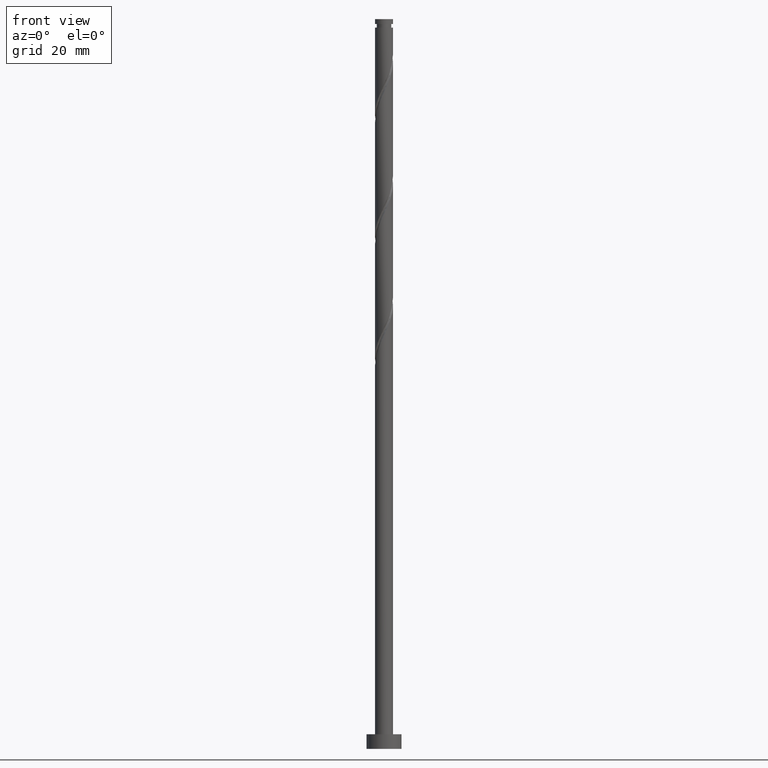
[diagram: clean part render]
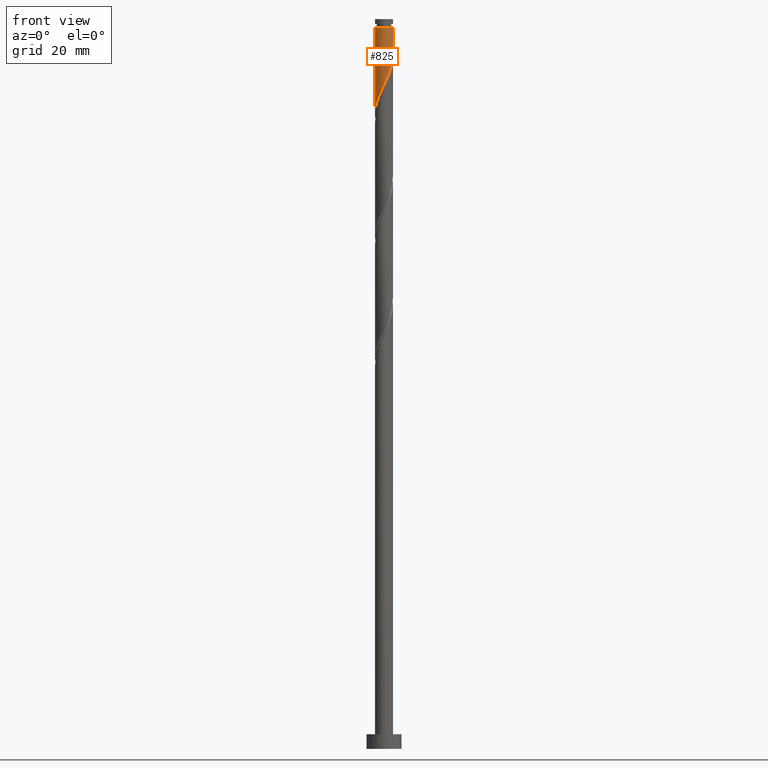
[diagram: same view with one face highlighted and labeled with its STEP entity id]
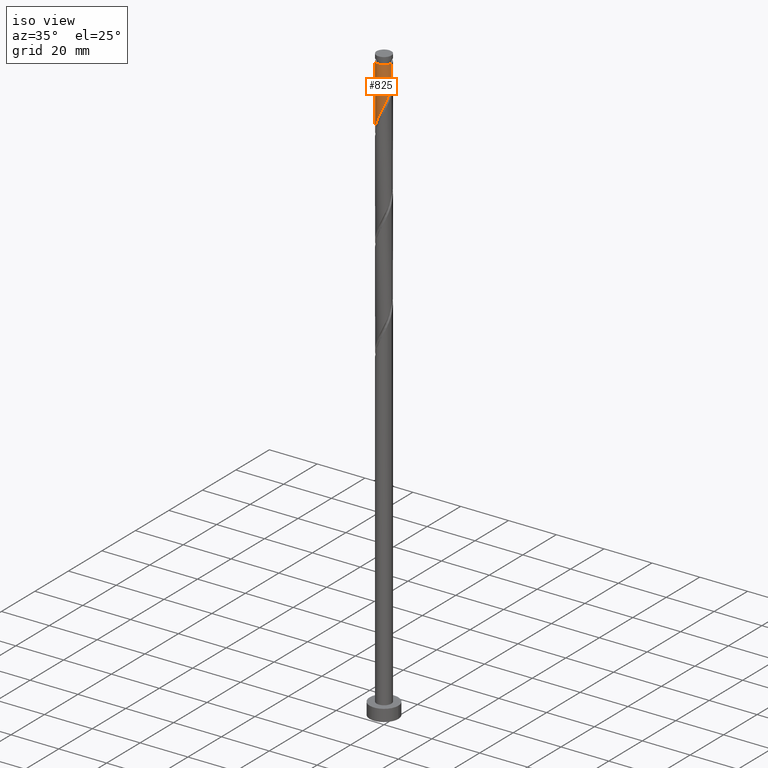
[diagram: same view with one face highlighted and labeled with its STEP entity id]
A machine part, front view. The second image highlights one B-rep face of the part: STEP entity #825.
A second angle (iso view) of the same face is appended — the face is thin or edge-on in the first view.
In plain terms, the highlighted cylindrical surface (edge-blend (fillet) strip) has radius 3.1 mm, axis along (-0, -0, -1).
Its self-contained STEP definition (entity closure, byte-faithful):
#9 = ORIENTED_EDGE ( 'NONE', *, *, #605, .T. ) ;
#54 = CARTESIAN_POINT ( 'NONE',  ( -1.326007432615845527, -2.802089272069598014, 224.6599036422655615 ) ) ;
#70 = CARTESIAN_POINT ( 'NONE',  ( 1.227034829342569244, -2.871596876557147571, 230.2688780012399832 ) ) ;
#173 = CARTESIAN_POINT ( 'NONE',  ( 2.941491420319844341, -0.9785848068434037650, 235.8778523602143480 ) ) ;
#188 = CARTESIAN_POINT ( 'NONE',  ( 3.060313128317944109, -0.6214230849569032378, 236.6791344114963920 ) ) ;
#228 = CARTESIAN_POINT ( 'NONE',  ( -0.6168922110061065833, -3.037999999999998924, 226.2624677448297064 ) ) ;
#283 =( BOUNDED_CURVE ( )  B_SPLINE_CURVE ( 2, ( #1429, #1411, #873, #188, #173, #735, #1254, #603, #1158, #1831, #347, #70, #1060, #1165, #1740, #1615, #228, #1056, #54, #1197, #364, #637, #1025, #1605, #1303, #626, #356, #1772, #1469 ),
 .UNSPECIFIED., .F., .T. ) 
 B_SPLINE_CURVE_WITH_KNOTS ( ( 3, 2, 2, 2, 2, 2, 2, 2, 2, 2, 2, 2, 2, 2, 3 ),
 ( 0.3045271625973832719, 0.3076923076923077094, 0.3173076923076922906, 0.3269230769230769273, 0.3365384615384615641, 0.3461538461538461453, 0.3557692307692307820, 0.3653846153846153633, 0.3750000000000000000, 0.3846153846153846367, 0.3942307692307692180, 0.4038461538461538547, 0.4134615384615384359, 0.4230769230769230727, 0.4295271625973834939 ),
 .UNSPECIFIED. ) 
 CURVE ( )  GEOMETRIC_REPRESENTATION_ITEM ( )  RATIONAL_B_SPLINE_CURVE ( ( 0.9061636035682864021, 0.9069090390690750514, 0.9090909090909315982, 0.9024626128164350281, 0.9090909090909315982, 0.9024626128164350281, 0.9090909090909315982, 0.9024626128164350281, 0.9090909090909315982, 0.9024626128164350281, 0.9090909090909315982, 0.9024626128164350281, 0.9090909090909315982, 0.9024626128164350281, 0.9090909090909315982, 0.9024626128164350281, 0.9090909090909315982, 0.9024626128164350281, 0.9090909090909315982, 0.9024626128164350281, 0.9090909090909315982, 0.9024626128164350281, 0.9090909090909315982, 0.9024626128164350281, 0.9090909090909315982, 0.9024626128164350281, 0.9090909090909315982, 0.9046444828382913528, 0.9061636035682862911 ) ) 
 REPRESENTATION_ITEM ( '' )  );
#312 = CARTESIAN_POINT ( 'NONE',  ( 3.099999999999982325, 3.796405077356784071E-16, 247.0958010781630207 ) ) ;
#347 = CARTESIAN_POINT ( 'NONE',  ( 1.552816185334429333, -2.683050855754215647, 231.0701600525219703 ) ) ;
#356 = CARTESIAN_POINT ( 'NONE',  ( -3.059332338079530089, -0.5004854095583951556, 218.2496472320091812 ) ) ;
#364 = CARTESIAN_POINT ( 'NONE',  ( -1.958059922082856952, -2.403331300826598849, 223.0573395397015020 ) ) ;
#384 = CARTESIAN_POINT ( 'NONE',  ( 3.100000000000000089, 3.796405077356794918E-16, 250.0000000000000000 ) ) ;
#407 = EDGE_CURVE ( 'NONE', #1306, #1693, #1638, .T. ) ;
#418 = CARTESIAN_POINT ( 'NONE',  ( 0.000000000000000000, 0.000000000000000000, 247.0958010781630207 ) ) ;
#430 = ORIENTED_EDGE ( 'NONE', *, *, #936, .T. ) ;
#596 = VERTEX_POINT ( 'NONE', #1093 ) ;
#603 = CARTESIAN_POINT ( 'NONE',  ( 2.420982992632351394, -1.972441239494201248, 233.4740062063681876 ) ) ;
#605 = EDGE_CURVE ( 'NONE', #1306, #1087, #1778, .T. ) ;
#608 = AXIS2_PLACEMENT_3D ( 'NONE', #418, #1521, #1463 ) ;
#623 = DIRECTION ( 'NONE',  ( -1.000000000000000000, 0.000000000000000000, 0.000000000000000000 ) ) ;
#624 = EDGE_LOOP ( 'NONE', ( #1053, #9, #430, #1099 ) ) ;
#626 = CARTESIAN_POINT ( 'NONE',  ( -2.998562407077144165, -0.8719556093840072908, 219.0509292832912820 ) ) ;
#637 = CARTESIAN_POINT ( 'NONE',  ( -2.249877174969357796, -2.165579781819274352, 222.2560574884194295 ) ) ;
#735 = CARTESIAN_POINT ( 'NONE',  ( 2.822669712321746793, -1.335746528729901739, 235.0765703089323324 ) ) ;
#762 = CYLINDRICAL_SURFACE ( 'NONE', #1296, 3.100000000000000089 ) ;
#825 = ADVANCED_FACE ( 'NONE', ( #1453 ), #762, .T. ) ;
#827 = CARTESIAN_POINT ( 'NONE',  ( 3.099999999999999645, -1.675065115728102555E-15, 238.0070562873882807 ) ) ;
#873 = CARTESIAN_POINT ( 'NONE',  ( 3.090207698699929395, -0.2462039376120615797, 237.4804164627784644 ) ) ;
#914 = CARTESIAN_POINT ( 'NONE',  ( 0.000000000000000000, 0.000000000000000000, 250.0000000000000000 ) ) ;
#936 = EDGE_CURVE ( 'NONE', #1087, #596, #1627, .T. ) ;
#939 = CARTESIAN_POINT ( 'NONE',  ( -3.099999999999982325, 0.000000000000000000, 247.0958010781630207 ) ) ;
#952 = VECTOR ( 'NONE', #1073, 1000.000000000000000 ) ;
#1025 = CARTESIAN_POINT ( 'NONE',  ( -2.476317086136642143, -1.864900450133393450, 221.4547754371374140 ) ) ;
#1047 = DIRECTION ( 'NONE',  ( -0.000000000000000000, -0.000000000000000000, -1.000000000000000000 ) ) ;
#1053 = ORIENTED_EDGE ( 'NONE', *, *, #407, .F. ) ;
#1056 = CARTESIAN_POINT ( 'NONE',  ( -0.9857721960353348356, -2.963095724305272238, 225.4611856935477192 ) ) ;
#1060 = CARTESIAN_POINT ( 'NONE',  ( 0.8655980712550801481, -2.976699511042302237, 229.4675959499579676 ) ) ;
#1073 = DIRECTION ( 'NONE',  ( -0.000000000000000000, -0.000000000000000000, -1.000000000000000000 ) ) ;
#1087 = VERTEX_POINT ( 'NONE', #939 ) ;
#1093 = CARTESIAN_POINT ( 'NONE',  ( -3.099999999999999645, 3.888544018654523613E-16, 217.1737229540548526 ) ) ;
#1099 = ORIENTED_EDGE ( 'NONE', *, *, #1327, .F. ) ;
#1158 = CARTESIAN_POINT ( 'NONE',  ( 2.149790266979321185, -2.233473037222740931, 232.6727241550861436 ) ) ;
#1165 = CARTESIAN_POINT ( 'NONE',  ( 0.5041613131675897197, -3.081802145527458237, 228.6663138986758952 ) ) ;
#1197 = CARTESIAN_POINT ( 'NONE',  ( -1.666242669196356552, -2.641082819833925566, 223.8586215909836028 ) ) ;
#1254 = CARTESIAN_POINT ( 'NONE',  ( 2.621826352477048871, -1.654093884112051382, 234.2752882576501747 ) ) ;
#1296 = AXIS2_PLACEMENT_3D ( 'NONE', #914, #1047, #623 ) ;
#1303 = CARTESIAN_POINT ( 'NONE',  ( -2.850659702190533551, -1.218088363915760253, 219.8522113345732691 ) ) ;
#1306 = VERTEX_POINT ( 'NONE', #312 ) ;
#1327 = EDGE_CURVE ( 'NONE', #1693, #596, #283, .T. ) ;
#1386 = CARTESIAN_POINT ( 'NONE',  ( -3.100000000000000089, 0.000000000000000000, 250.0000000000000000 ) ) ;
#1411 = CARTESIAN_POINT ( 'NONE',  ( 3.099999999999999645, -0.1232967040439839762, 237.7428853717553068 ) ) ;
#1429 = CARTESIAN_POINT ( 'NONE',  ( 3.099999999999999645, -1.675065115728102358E-15, 238.0070562873882807 ) ) ;
#1453 = FACE_OUTER_BOUND ( 'NONE', #624, .T. ) ;
#1463 = DIRECTION ( 'NONE',  ( -1.000000000000000000, 0.000000000000000000, 0.000000000000000000 ) ) ;
#1466 = VECTOR ( 'NONE', #1667, 1000.000000000000000 ) ;
#1469 = CARTESIAN_POINT ( 'NONE',  ( -3.099999999999999645, 3.888544018654523613E-16, 217.1737229540548526 ) ) ;
#1521 = DIRECTION ( 'NONE',  ( -0.000000000000000000, -0.000000000000000000, -1.000000000000000000 ) ) ;
#1605 = CARTESIAN_POINT ( 'NONE',  ( -2.702756997303925157, -1.564221118447513215, 220.6534933858553131 ) ) ;
#1615 = CARTESIAN_POINT ( 'NONE',  ( -0.2480122259768793302, -3.112904275694726053, 227.0637497961117788 ) ) ;
#1627 = LINE ( 'NONE', #1386, #952 ) ;
#1638 = LINE ( 'NONE', #384, #1466 ) ;
#1667 = DIRECTION ( 'NONE',  ( -0.000000000000000000, -0.000000000000000000, -1.000000000000000000 ) ) ;
#1693 = VERTEX_POINT ( 'NONE', #827 ) ;
#1740 = CARTESIAN_POINT ( 'NONE',  ( 0.1280745435953551115, -3.097353210611092145, 227.8650318473937944 ) ) ;
#1772 = CARTESIAN_POINT ( 'NONE',  ( -3.100000000000001865, -0.2518949594648319246, 217.7134236914032215 ) ) ;
#1778 = CIRCLE ( 'NONE', #608, 3.099999999999982325 ) ;
#1831 = CARTESIAN_POINT ( 'NONE',  ( 1.878597541326289866, -2.494504834951285499, 231.8714421038040712 ) ) ;